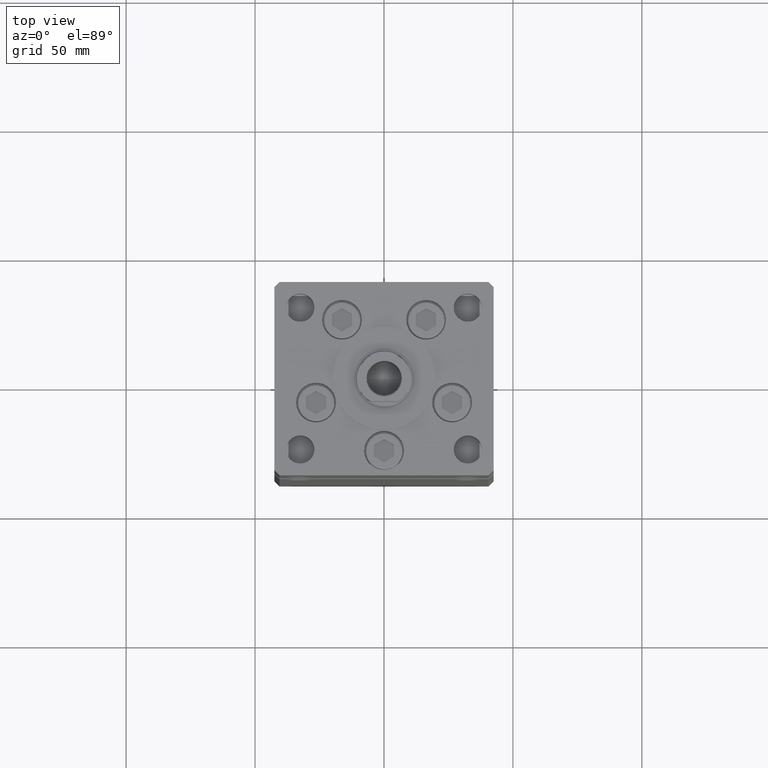
[diagram: clean part render]
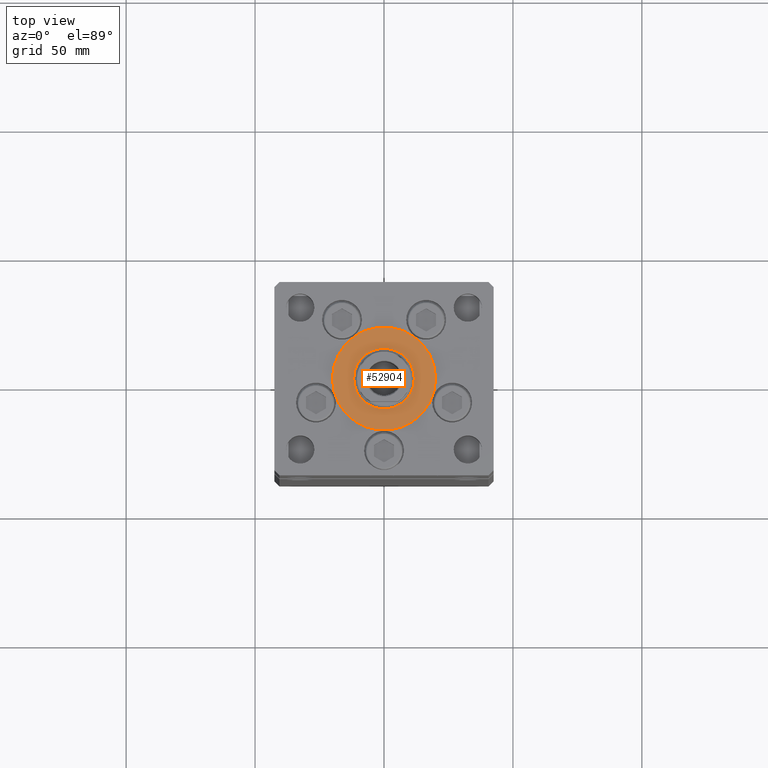
[diagram: same view with one face highlighted and labeled with its STEP entity id]
A machine part, top view. The second image highlights one B-rep face of the part: STEP entity #52904.
In plain terms, the highlighted planar face has unit normal (0, 0, 1).
Its self-contained STEP definition (entity closure, byte-faithful):
#1265 = CIRCLE ( 'NONE', #32228, 11.75000000000000178 ) ;
#2172 = DIRECTION ( 'NONE',  ( 1.000000000000000000, 0.000000000000000000, 0.000000000000000000 ) ) ;
#3270 = CIRCLE ( 'NONE', #34171, 11.75000000000000178 ) ;
#3746 = CIRCLE ( 'NONE', #21800, 20.00000000000000000 ) ;
#4716 = VERTEX_POINT ( 'NONE', #28562 ) ;
#4821 = EDGE_CURVE ( 'NONE', #45721, #4716, #7082, .T. ) ;
#6205 = CARTESIAN_POINT ( 'NONE',  ( 0.000000000000000000, -6.938893903907228378E-15, 2.000000000000000000 ) ) ;
#6372 = FACE_OUTER_BOUND ( 'NONE', #50519, .T. ) ;
#6640 = CARTESIAN_POINT ( 'NONE',  ( 0.000000000000000000, -6.938893903907228378E-15, 2.000000000000000000 ) ) ;
#7082 = CIRCLE ( 'NONE', #43972, 20.00000000000000000 ) ;
#7153 = ORIENTED_EDGE ( 'NONE', *, *, #4821, .T. ) ;
#13481 = DIRECTION ( 'NONE',  ( 0.000000000000000000, 0.000000000000000000, 1.000000000000000000 ) ) ;
#14171 = DIRECTION ( 'NONE',  ( 1.000000000000000000, 0.000000000000000000, 0.000000000000000000 ) ) ;
#15725 = EDGE_CURVE ( 'NONE', #4716, #45721, #3746, .T. ) ;
#18998 = DIRECTION ( 'NONE',  ( 0.000000000000000000, 0.000000000000000000, 1.000000000000000000 ) ) ;
#20619 = CARTESIAN_POINT ( 'NONE',  ( 0.000000000000000000, -6.938893903907228378E-15, 2.000000000000000000 ) ) ;
#21800 = AXIS2_PLACEMENT_3D ( 'NONE', #30575, #50966, #46939 ) ;
#22244 = CARTESIAN_POINT ( 'NONE',  ( 0.000000000000000000, -6.938893903907228378E-15, 2.000000000000000000 ) ) ;
#23566 = DIRECTION ( 'NONE',  ( 1.000000000000000000, 0.000000000000000000, -0.000000000000000000 ) ) ;
#26493 = CARTESIAN_POINT ( 'NONE',  ( -11.75000000000000178, -5.499933914909088809E-15, 2.000000000000000000 ) ) ;
#27071 = FACE_BOUND ( 'NONE', #43123, .T. ) ;
#27585 = PLANE ( 'NONE',  #44206 ) ;
#28562 = CARTESIAN_POINT ( 'NONE',  ( 20.00000000000000000, -4.489600305612522259E-15, 2.000000000000000000 ) ) ;
#30575 = CARTESIAN_POINT ( 'NONE',  ( 0.000000000000000000, -6.938893903907228378E-15, 2.000000000000000000 ) ) ;
#32228 = AXIS2_PLACEMENT_3D ( 'NONE', #22244, #34592, #14171 ) ;
#33605 = CARTESIAN_POINT ( 'NONE',  ( -20.00000000000000000, -6.938893903907228378E-15, 2.000000000000000000 ) ) ;
#34171 = AXIS2_PLACEMENT_3D ( 'NONE', #20619, #40497, #37013 ) ;
#34592 = DIRECTION ( 'NONE',  ( 0.000000000000000000, 0.000000000000000000, 1.000000000000000000 ) ) ;
#35556 = ORIENTED_EDGE ( 'NONE', *, *, #35636, .F. ) ;
#35636 = EDGE_CURVE ( 'NONE', #47142, #39654, #3270, .T. ) ;
#37013 = DIRECTION ( 'NONE',  ( 1.000000000000000000, 0.000000000000000000, 0.000000000000000000 ) ) ;
#37812 = CARTESIAN_POINT ( 'NONE',  ( 11.75000000000000178, -6.938893903907228378E-15, 2.000000000000000000 ) ) ;
#39654 = VERTEX_POINT ( 'NONE', #37812 ) ;
#40497 = DIRECTION ( 'NONE',  ( 0.000000000000000000, 0.000000000000000000, 1.000000000000000000 ) ) ;
#43123 = EDGE_LOOP ( 'NONE', ( #47273, #35556 ) ) ;
#43972 = AXIS2_PLACEMENT_3D ( 'NONE', #6205, #13481, #2172 ) ;
#44206 = AXIS2_PLACEMENT_3D ( 'NONE', #6640, #18998, #23566 ) ;
#45721 = VERTEX_POINT ( 'NONE', #33605 ) ;
#46939 = DIRECTION ( 'NONE',  ( 1.000000000000000000, 0.000000000000000000, 0.000000000000000000 ) ) ;
#47142 = VERTEX_POINT ( 'NONE', #26493 ) ;
#47273 = ORIENTED_EDGE ( 'NONE', *, *, #52778, .F. ) ;
#48535 = ORIENTED_EDGE ( 'NONE', *, *, #15725, .T. ) ;
#50519 = EDGE_LOOP ( 'NONE', ( #7153, #48535 ) ) ;
#50966 = DIRECTION ( 'NONE',  ( 0.000000000000000000, 0.000000000000000000, 1.000000000000000000 ) ) ;
#52778 = EDGE_CURVE ( 'NONE', #39654, #47142, #1265, .T. ) ;
#52904 = ADVANCED_FACE ( 'NONE', ( #27071, #6372 ), #27585, .T. ) ;